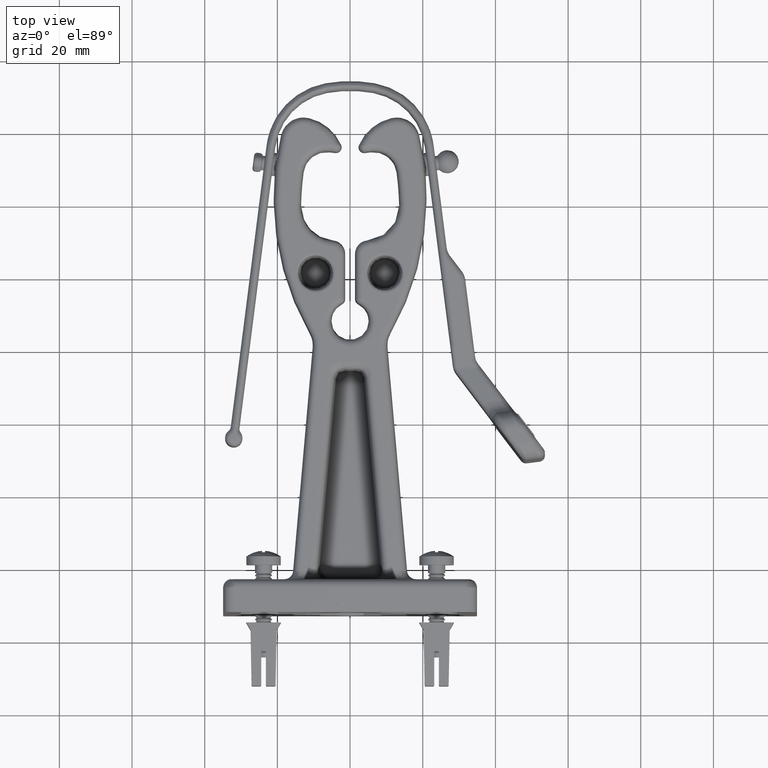
[diagram: clean part render]
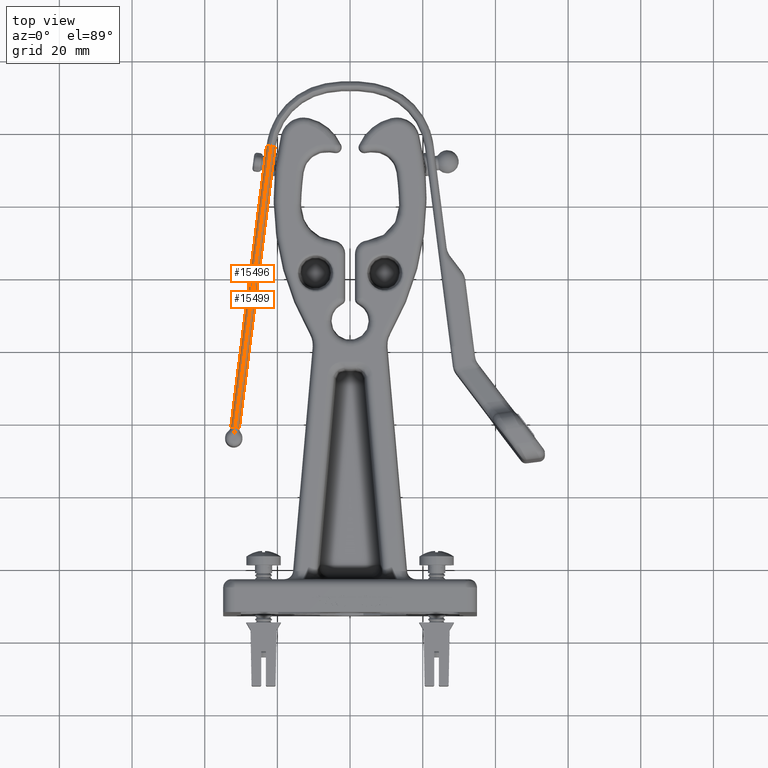
[diagram: same view with one multi-face feature highlighted, each face labeled with its STEP entity id]
A machine part, top view. The highlighted faces form ONE feature: a constant-radius fillet chain: 2 tangent blend faces with common blend radius 1.5875 mm. The faces share edges in the B-rep.
Their STEP definitions:
[1] entity #15496 (Cylinder):
#2199 = CARTESIAN_POINT ( 'NONE',  ( -0.9046063249498265100, 4.572826818950178800, 0.3749999999999999400 ) ) ;
#2201 = CARTESIAN_POINT ( 'NONE',  ( -1.292783649916532600, 1.521503734797615700, 0.3750000000000002200 ) ) ;
#2210 = CARTESIAN_POINT ( 'NONE',  ( -0.8581060929335897500, 4.566911242271936000, 0.4355153647844908200 ) ) ;
#2211 = CARTESIAN_POINT ( 'NONE',  ( -1.246283417900296200, 1.515588158119373800, 0.4355153647844911500 ) ) ;
#15496 = ADVANCED_FACE ( 'NONE', ( #24717 ), #24719, .T. ) ;
#16144 = VERTEX_POINT ( 'NONE', #2199 ) ;
#16148 = VERTEX_POINT ( 'NONE', #2201 ) ;
#16165 = VERTEX_POINT ( 'NONE', #2210 ) ;
#16167 = VERTEX_POINT ( 'NONE', #2211 ) ;
#19188 = ORIENTED_EDGE ( 'NONE', *, *, #49586, .F. ) ;
#19189 = ORIENTED_EDGE ( 'NONE', *, *, #49548, .F. ) ;
#19190 = ORIENTED_EDGE ( 'NONE', *, *, #49583, .F. ) ;
#19191 = ORIENTED_EDGE ( 'NONE', *, *, #49573, .F. ) ;
#23795 = AXIS2_PLACEMENT_3D ( 'NONE', #25927, #25921, #25925 ) ;
#24717 = FACE_OUTER_BOUND ( 'NONE', #48761, .T. ) ;
#24719 = CYLINDRICAL_SURFACE ( 'NONE', #23795, 0.06250000000000001400 ) ;
#25921 = DIRECTION ( 'NONE',  ( -0.1261989691358264600, -0.9920049496797154200, 8.326672684688674100E-017 ) ) ;
#25925 = DIRECTION ( 'NONE',  ( 0.0000000000000000000, 0.0000000000000000000, 1.000000000000000000 ) ) ;
#25927 = CARTESIAN_POINT ( 'NONE',  ( -0.2352734766286793700, 9.338963203712818700, 0.3749999999999995600 ) ) ;
#30359 = AXIS2_PLACEMENT_3D ( 'NONE', #37597, #37603, #37604 ) ;
#30360 = AXIS2_PLACEMENT_3D ( 'NONE', #37612, #37613, #37614 ) ;
#36663 = LINE ( 'NONE', #37497, #36667 ) ;
#36667 = VECTOR ( 'NONE', #37508, 39.37007874015748100 ) ;
#36693 = LINE ( 'NONE', #37574, #36695 ) ;
#36695 = VECTOR ( 'NONE', #37575, 39.37007874015748100 ) ;
#36714 = CIRCLE ( 'NONE', #30359, 0.06250000000000001400 ) ;
#36717 = CIRCLE ( 'NONE', #30360, 0.06250000000000001400 ) ;
#37497 = CARTESIAN_POINT ( 'NONE',  ( -0.4324169066862770800, 8.284538913838034100, 0.3749999999999996100 ) ) ;
#37508 = DIRECTION ( 'NONE',  ( 0.1261989691358264600, 0.9920049496797155300, -8.326672684688674100E-017 ) ) ;
#37574 = CARTESIAN_POINT ( 'NONE',  ( -0.8161000462851681900, 4.897105747639583000, 0.4355153647844908200 ) ) ;
#37575 = DIRECTION ( 'NONE',  ( -0.1261989691358264600, -0.9920049496797155300, 8.326672684688674100E-017 ) ) ;
#37597 = CARTESIAN_POINT ( 'NONE',  ( -1.230783340561550700, 1.513616299226626700, 0.3750000000000002200 ) ) ;
#37603 = DIRECTION ( 'NONE',  ( -0.1261989691358264600, -0.9920049496797155300, 8.326672684688674100E-017 ) ) ;
#37604 = DIRECTION ( 'NONE',  ( 0.0000000000000000000, 0.0000000000000000000, 1.000000000000000000 ) ) ;
#37612 = CARTESIAN_POINT ( 'NONE',  ( -0.8426060155948441600, 4.564939383379189600, 0.3749999999999999400 ) ) ;
#37613 = DIRECTION ( 'NONE',  ( 0.1261989691358264600, 0.9920049496797154200, 5.497407917681614000E-017 ) ) ;
#37614 = DIRECTION ( 'NONE',  ( -4.370956789862820400E-015, 0.0000000000000000000, 1.000000000000000000 ) ) ;
#48761 = EDGE_LOOP ( 'NONE', ( #19188, #19189, #19190, #19191 ) ) ;
#49548 = EDGE_CURVE ( 'NONE', #16148, #16144, #36663, .T. ) ;
#49573 = EDGE_CURVE ( 'NONE', #16165, #16167, #36693, .T. ) ;
#49583 = EDGE_CURVE ( 'NONE', #16167, #16148, #36714, .T. ) ;
#49586 = EDGE_CURVE ( 'NONE', #16144, #16165, #36717, .T. ) ;
[2] entity #15499 (Cylinder):
#2204 = CARTESIAN_POINT ( 'NONE',  ( -0.8116058609173530900, 4.560995665593695000, 0.3750000000000002200 ) ) ;
#2205 = CARTESIAN_POINT ( 'NONE',  ( -1.199783185884059300, 1.509672581441132000, 0.3750000000000002200 ) ) ;
#2210 = CARTESIAN_POINT ( 'NONE',  ( -0.8581060929335897500, 4.566911242271936000, 0.4355153647844908200 ) ) ;
#2211 = CARTESIAN_POINT ( 'NONE',  ( -1.246283417900296200, 1.515588158119373800, 0.4355153647844911500 ) ) ;
#15499 = ADVANCED_FACE ( 'NONE', ( #24723 ), #24725, .T. ) ;
#16153 = VERTEX_POINT ( 'NONE', #2204 ) ;
#16155 = VERTEX_POINT ( 'NONE', #2205 ) ;
#16165 = VERTEX_POINT ( 'NONE', #2210 ) ;
#16167 = VERTEX_POINT ( 'NONE', #2211 ) ;
#19201 = ORIENTED_EDGE ( 'NONE', *, *, #49591, .F. ) ;
#19202 = ORIENTED_EDGE ( 'NONE', *, *, #49573, .T. ) ;
#19203 = ORIENTED_EDGE ( 'NONE', *, *, #49581, .F. ) ;
#19204 = ORIENTED_EDGE ( 'NONE', *, *, #49560, .F. ) ;
#23798 = AXIS2_PLACEMENT_3D ( 'NONE', #25936, #25930, #25934 ) ;
#24723 = FACE_OUTER_BOUND ( 'NONE', #48756, .T. ) ;
#24725 = CYLINDRICAL_SURFACE ( 'NONE', #23798, 0.06250000000000001400 ) ;
#25930 = DIRECTION ( 'NONE',  ( 0.1261989691358264600, 0.9920049496797154200, -8.326672684688674100E-017 ) ) ;
#25934 = DIRECTION ( 'NONE',  ( 0.0000000000000000000, 0.0000000000000000000, -1.000000000000000000 ) ) ;
#25936 = CARTESIAN_POINT ( 'NONE',  ( -1.275865384392782100, 1.406867324060590200, 0.3750000000000002200 ) ) ;
#30357 = AXIS2_PLACEMENT_3D ( 'NONE', #37591, #37598, #37599 ) ;
#30361 = AXIS2_PLACEMENT_3D ( 'NONE', #37629, #37630, #37631 ) ;
#36683 = LINE ( 'NONE', #37539, #36684 ) ;
#36684 = VECTOR ( 'NONE', #37540, 39.37007874015748100 ) ;
#36693 = LINE ( 'NONE', #37574, #36695 ) ;
#36695 = VECTOR ( 'NONE', #37575, 39.37007874015748100 ) ;
#36711 = CIRCLE ( 'NONE', #30357, 0.06250000000000001400 ) ;
#36724 = CIRCLE ( 'NONE', #30361, 0.06250000000000001400 ) ;
#37539 = CARTESIAN_POINT ( 'NONE',  ( -0.2042733219511882700, 9.335019485927324100, 0.3749999999999995600 ) ) ;
#37540 = DIRECTION ( 'NONE',  ( -0.1261989691358264600, -0.9920049496797155300, 8.326672684688674100E-017 ) ) ;
#37574 = CARTESIAN_POINT ( 'NONE',  ( -0.8161000462851681900, 4.897105747639583000, 0.4355153647844908200 ) ) ;
#37575 = DIRECTION ( 'NONE',  ( -0.1261989691358264600, -0.9920049496797155300, 8.326672684688674100E-017 ) ) ;
#37591 = CARTESIAN_POINT ( 'NONE',  ( -1.261783495239041700, 1.517560017012121100, 0.3750000000000002200 ) ) ;
#37598 = DIRECTION ( 'NONE',  ( -0.1261989691358264600, -0.9920049496797155300, 8.326672684688674100E-017 ) ) ;
#37599 = DIRECTION ( 'NONE',  ( 0.0000000000000000000, 0.0000000000000000000, 1.000000000000000000 ) ) ;
#37629 = CARTESIAN_POINT ( 'NONE',  ( -0.8736061702723353400, 4.568883101164684200, 0.3749999999999999400 ) ) ;
#37630 = DIRECTION ( 'NONE',  ( 0.1261989691358264600, 0.9920049496797154200, 5.497407917681614000E-017 ) ) ;
#37631 = DIRECTION ( 'NONE',  ( 0.0000000000000000000, 0.0000000000000000000, 1.000000000000000000 ) ) ;
#48756 = EDGE_LOOP ( 'NONE', ( #19201, #19202, #19203, #19204 ) ) ;
#49560 = EDGE_CURVE ( 'NONE', #16153, #16155, #36683, .T. ) ;
#49573 = EDGE_CURVE ( 'NONE', #16165, #16167, #36693, .T. ) ;
#49581 = EDGE_CURVE ( 'NONE', #16155, #16167, #36711, .T. ) ;
#49591 = EDGE_CURVE ( 'NONE', #16165, #16153, #36724, .T. ) ;